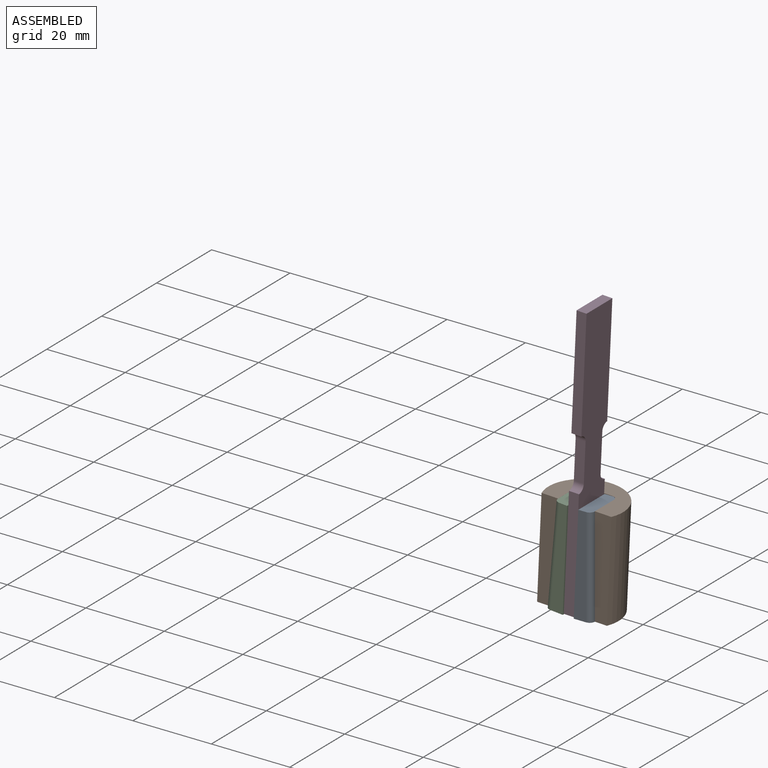
[diagram: assembled view]
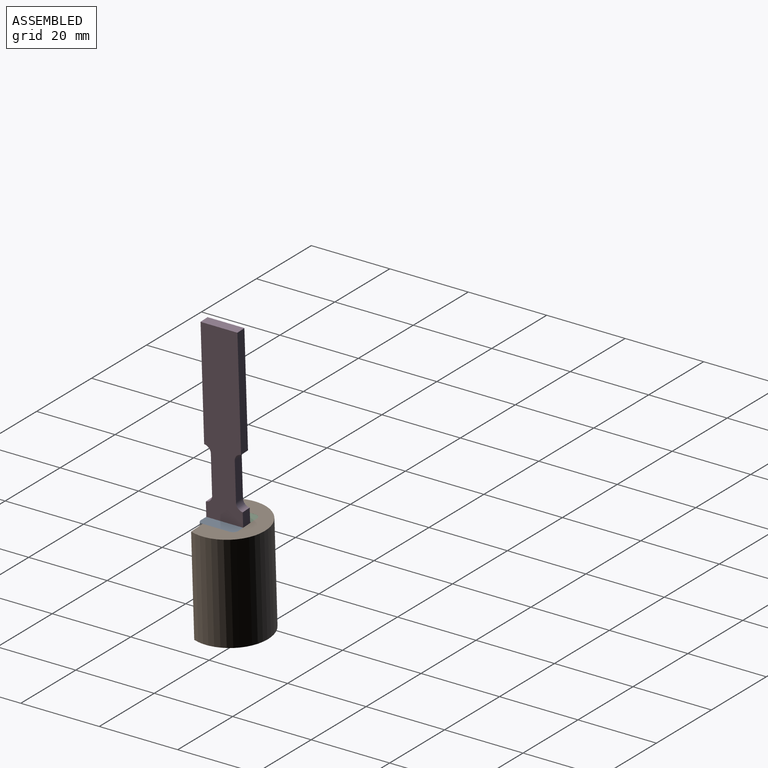
[diagram: assembled view, second angle]
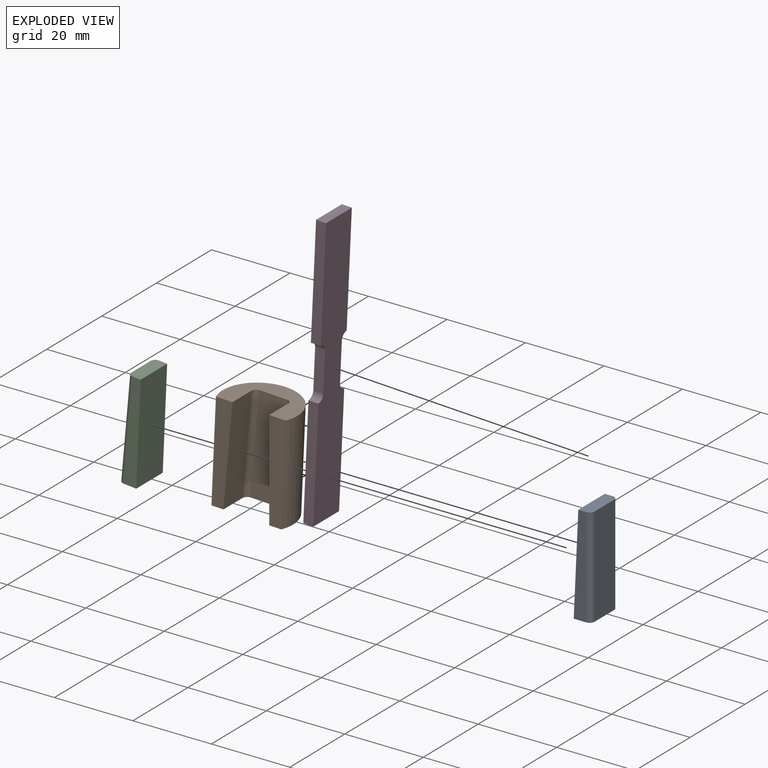
[diagram: exploded view]
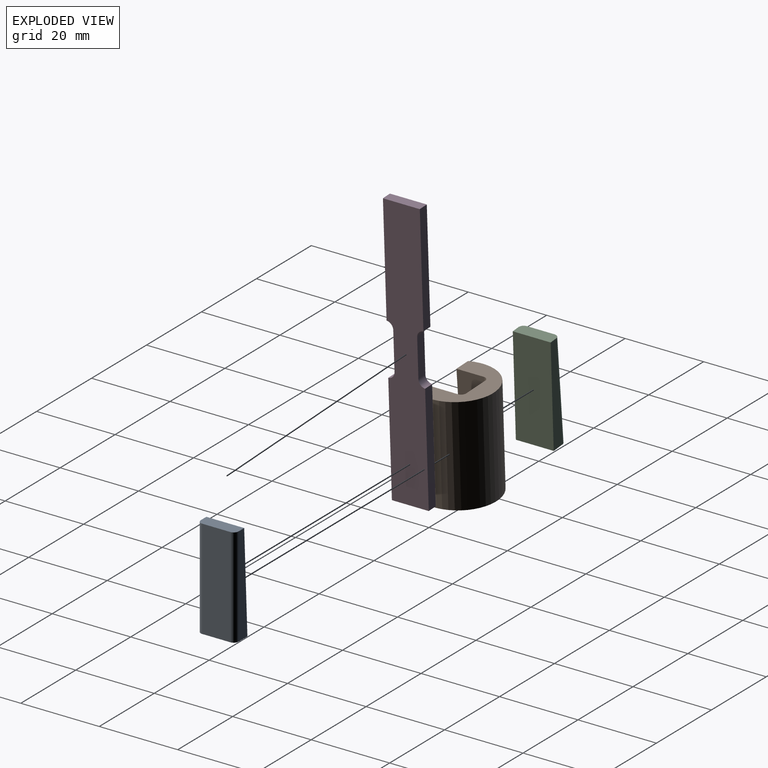
[diagram: exploded view, second angle]
ASSEMBLY  parts=4 mates=3
PART A: 8 faces, bbox 4.4x9.7x25.4 mm
  f0: plane 25.4x3.18mm, normal (0,-1,0), area 65.8mm2, adj f1,f5,f6,f7
  f1: cylinder r=1.27mm len=25.4mm, axis (0,0,-1), area 50.7mm2, adj f0,f2,f5,f6
  f2: plane 25.4x7.11mm, normal (1,0,0), area 180.6mm2, adj f1,f3,f5,f6
  f3: cylinder r=1.27mm len=25.4mm, axis (0,0,-1), area 50.7mm2, adj f2,f4,f5,f6
  f4: plane 25.4x3.18mm, normal (0,1,0), area 65.8mm2, adj f3,f5,f6,f7
  f5: plane 9.65x3.28mm, normal (0,0,1), area 30.9mm2, adj f0,f1,f2,f3,f4,f7
  f6: plane 9.65x4.45mm, normal (0,0,-1), area 42.2mm2, adj f0,f1,f2,f3,f4,f7
  f7: plane 25.4x9.65mm, normal (-1,0,0.05), area 245.4mm2, adj f0,f4,f5,f6
PART B: 10 faces, bbox 19.1x13.3x25.4 mm
  f0: plane 19.09x12.96mm, normal (0,0,-1), area 110.4mm2, adj f1,f3,f4,f5,f6,f7,f8,f9
  f1: cylinder r=9.53mm len=25.4mm, axis (0,0,-1), area 936mm2, adj f0,f2,f8,f9
  f2: plane 19.09x12.95mm, normal (0,0,1), area 129.2mm2, adj f1,f3,f4,f5,f6,f7,f8,f9
  f3: plane 25.4x6.94mm, normal (1,0,-0.04), area 176.5mm2, adj f0,f2,f5,f9
  f4: plane 25.4x6.94mm, normal (-1,0,-0.04), area 176.5mm2, adj f0,f2,f6,f8
  f5: bspline ~25.4x2.41mm, area 50.7mm2, adj f0,f2,f3,f7
  f6: bspline ~25.4x10.59mm, area 50.7mm2, adj f0,f2,f4,f7
  f7: plane 25.4x9.14mm, normal (0,-1,0), area 203.2mm2, adj f0,f2,f5,f6
  f8: plane 25.4x4.2mm, normal (0,-1,0), area 92.3mm2, adj f0,f1,f2,f4
  f9: plane 25.4x4.2mm, normal (0,-1,0), area 92.3mm2, adj f0,f1,f2,f3
PART C: same geometry as A
PART D: 14 faces, bbox 70.9x9.4x2.5 mm
  f0: cylinder r=1.78mm len=2.54mm, axis (0,0,-1), area 6.8mm2, adj f1,f11,f12,f13
  f1: plane 9.91x2.54mm, normal (0,1,0), area 25.2mm2, adj f0,f2,f12,f13
  f2: cylinder r=1.78mm len=2.54mm, axis (0,0,-1), area 6.8mm2, adj f1,f3,f12,f13
  f3: plane 28.7x2.54mm, normal (0,1,0), area 72.9mm2, adj f2,f4,f12,f13
  f4: plane 9.4x2.54mm, normal (-1,0,0), area 23.9mm2, adj f3,f5,f12,f13
  f5: plane 28.7x2.54mm, normal (0,-1,0), area 72.9mm2, adj f4,f6,f12,f13
  f6: cylinder r=1.78mm len=2.54mm, axis (0,0,-1), area 6.8mm2, adj f5,f7,f12,f13
  f7: plane 9.91x2.54mm, normal (0,-1,0), area 25.2mm2, adj f6,f8,f12,f13
  f8: cylinder r=1.78mm len=2.54mm, axis (0,0,-1), area 6.8mm2, adj f7,f9,f12,f13
  f9: plane 28.7x2.54mm, normal (0,-1,0), area 72.9mm2, adj f8,f10,f12,f13
  f10: plane 9.4x2.54mm, normal (1,0,0), area 23.9mm2, adj f9,f11,f12,f13
  f11: plane 28.7x2.54mm, normal (0,1,0), area 72.9mm2, adj f0,f10,f12,f13
  f12: plane 70.86x9.4mm, normal (0,0,1), area 624.2mm2, adj f0,f1,f2,f3,f4,f5,f6,f7
  f13: plane 70.86x9.4mm, normal (0,0,-1), area 624.2mm2, adj f0,f1,f2,f3,f4,f5,f6,f7
PLACE A t=(8.1,-8.22,-0.15)mm
PLACE B rot(axis=(0,1,0),2.6deg) t=(6.71,-3.48,0.1)mm fixed
PLACE C rot(axis=(0.04,0,1),180deg) t=(5.3,1.43,-0.02)mm
PLACE D rot(axis=(0,-1,0),87.4deg) t=(8.12,-8.23,0.19)mm
MATE fastened B.f4 <-> A.f2  axis (-1,0,0) through (12.55,-3.4,12.55)mm
MATE fastened B.f3 <-> C.f2  axis (1,0,-0.09) through (2.01,-3.4,13.03)mm
MATE planar D.f13 <-> A.f7  axis (1,0,-0.05) through (9.74,-3.53,35.58)mm
